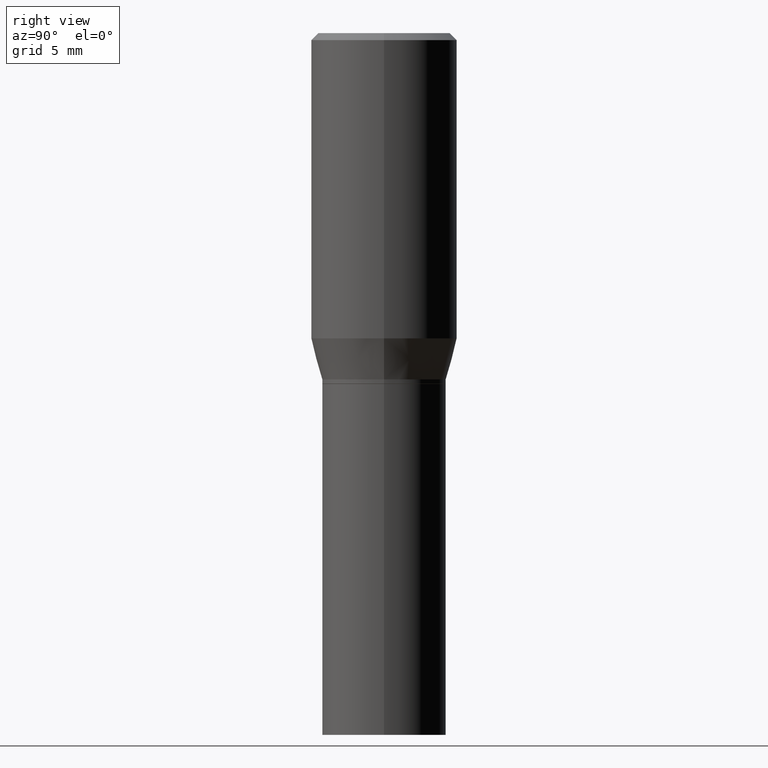
[diagram: clean part render]
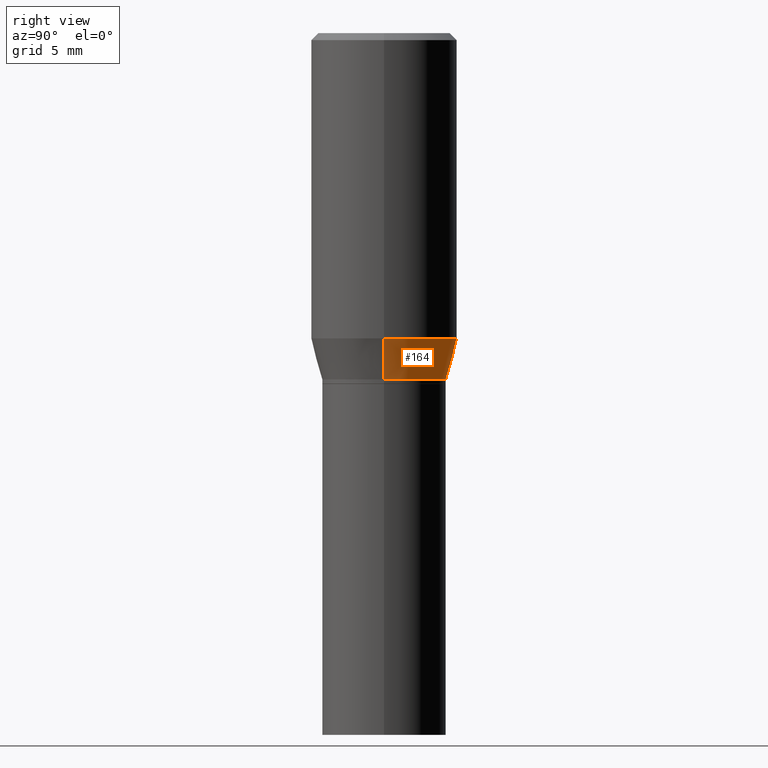
[diagram: same view with one face highlighted and labeled with its STEP entity id]
A machine part, right view. The second image highlights one B-rep face of the part: STEP entity #164.
In plain terms, the highlighted conical surface has half-angle 15 deg.
Its self-contained STEP definition (entity closure, byte-faithful):
#17 = VERTEX_POINT ( 'NONE', #20 ) ;
#20 = CARTESIAN_POINT ( 'NONE',  ( 0.1562500000000000000, -3.369221563289251454E-15, -0.6524834085625104141 ) ) ;
#25 = CARTESIAN_POINT ( 'NONE',  ( 1.595627822192971094E-29, -2.278133644900773069E-15, -0.6524834085625104141 ) ) ;
#72 = EDGE_CURVE ( 'NONE', #161, #194, #201, .T. ) ;
#82 = ORIENTED_EDGE ( 'NONE', *, *, #388, .F. ) ;
#85 = CARTESIAN_POINT ( 'NONE',  ( 0.1328000000000000569, -3.511033634340664450E-15, -0.7400000000000002132 ) ) ;
#87 = VECTOR ( 'NONE', #377, 39.37007874015748143 ) ;
#90 = CARTESIAN_POINT ( 'NONE',  ( 0.1328000000000000569, -3.511033634340664450E-15, -0.7400000000000002132 ) ) ;
#96 = CARTESIAN_POINT ( 'NONE',  ( -0.1328000000000000569, -1.404003028965065357E-15, -0.7400000000000002132 ) ) ;
#97 = AXIS2_PLACEMENT_3D ( 'NONE', #287, #116, #187 ) ;
#116 = DIRECTION ( 'NONE',  ( -2.445468806185136597E-29, 3.491481338843145583E-15, 1.000000000000000000 ) ) ;
#124 = CARTESIAN_POINT ( 'NONE',  ( -0.1562500000000000000, -1.167910620275616332E-15, -0.6524834085625104141 ) ) ;
#132 = DIRECTION ( 'NONE',  ( -2.445468806185136597E-29, 3.491481338843145583E-15, 1.000000000000000000 ) ) ;
#134 = VECTOR ( 'NONE', #410, 39.37007874015748143 ) ;
#142 = AXIS2_PLACEMENT_3D ( 'NONE', #25, #132, #412 ) ;
#161 = VERTEX_POINT ( 'NONE', #96 ) ;
#163 = CARTESIAN_POINT ( 'NONE',  ( -0.1328000000000000569, -1.640095437654514777E-15, -0.7400000000000002132 ) ) ;
#164 = ADVANCED_FACE ( 'NONE', ( #288 ), #267, .T. ) ;
#187 = DIRECTION ( 'NONE',  ( 1.000000000000000000, -6.982962677686265133E-15, 0.000000000000000000 ) ) ;
#194 = VERTEX_POINT ( 'NONE', #124 ) ;
#197 = LINE ( 'NONE', #90, #87 ) ;
#201 = LINE ( 'NONE', #163, #134 ) ;
#212 = ORIENTED_EDGE ( 'NONE', *, *, #424, .F. ) ;
#232 = AXIS2_PLACEMENT_3D ( 'NONE', #448, #438, #398 ) ;
#248 = CIRCLE ( 'NONE', #142, 0.1562500000000000000 ) ;
#252 = ORIENTED_EDGE ( 'NONE', *, *, #318, .T. ) ;
#267 = CONICAL_SURFACE ( 'NONE', #232, 0.1328000000000000569, 0.2617993877991501850 ) ;
#287 = CARTESIAN_POINT ( 'NONE',  ( 1.809646916577001463E-29, -2.583696190743928228E-15, -0.7400000000000002132 ) ) ;
#288 = FACE_OUTER_BOUND ( 'NONE', #402, .T. ) ;
#318 = EDGE_CURVE ( 'NONE', #322, #161, #343, .T. ) ;
#322 = VERTEX_POINT ( 'NONE', #85 ) ;
#332 = ORIENTED_EDGE ( 'NONE', *, *, #72, .T. ) ;
#343 = CIRCLE ( 'NONE', #97, 0.1328000000000000569 ) ;
#377 = DIRECTION ( 'NONE',  ( 0.2588190451025214611, 1.565188264969620982E-15, 0.9659258262890679791 ) ) ;
#388 = EDGE_CURVE ( 'NONE', #17, #194, #248, .T. ) ;
#398 = DIRECTION ( 'NONE',  ( 1.000000000000000000, -6.982962677686265133E-15, 0.000000000000000000 ) ) ;
#402 = EDGE_LOOP ( 'NONE', ( #252, #332, #82, #212 ) ) ;
#410 = DIRECTION ( 'NONE',  ( -0.2588190451025214611, 5.211531920934550253E-15, 0.9659258262890679791 ) ) ;
#412 = DIRECTION ( 'NONE',  ( 1.000000000000000000, -6.982962677686265133E-15, 0.000000000000000000 ) ) ;
#424 = EDGE_CURVE ( 'NONE', #322, #17, #197, .T. ) ;
#438 = DIRECTION ( 'NONE',  ( -2.445468806185136597E-29, 3.491481338843145583E-15, 1.000000000000000000 ) ) ;
#448 = CARTESIAN_POINT ( 'NONE',  ( 1.809646916577001463E-29, -2.583696190743928228E-15, -0.7400000000000002132 ) ) ;